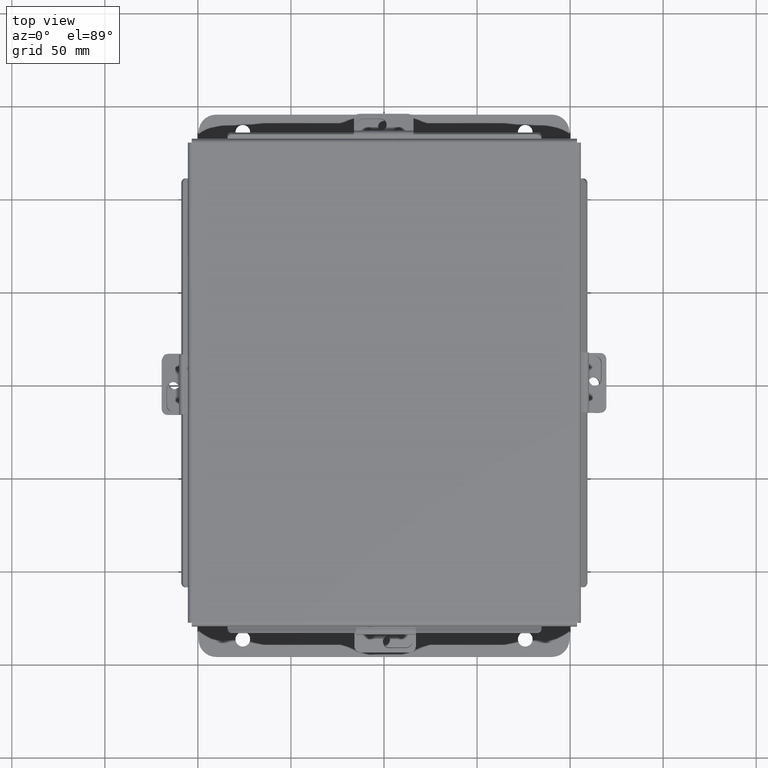
[diagram: clean part render]
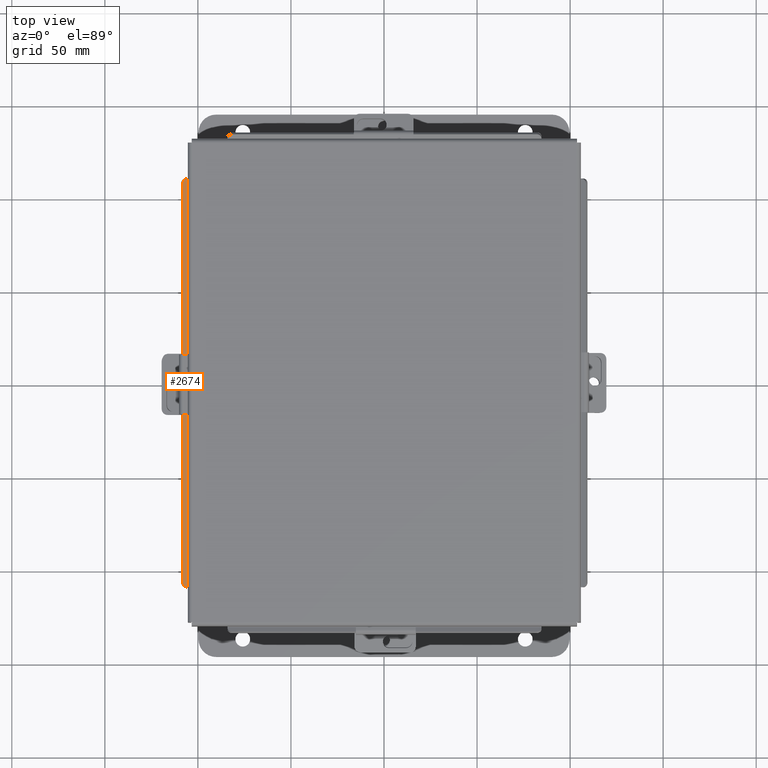
[diagram: same view with one face highlighted and labeled with its STEP entity id]
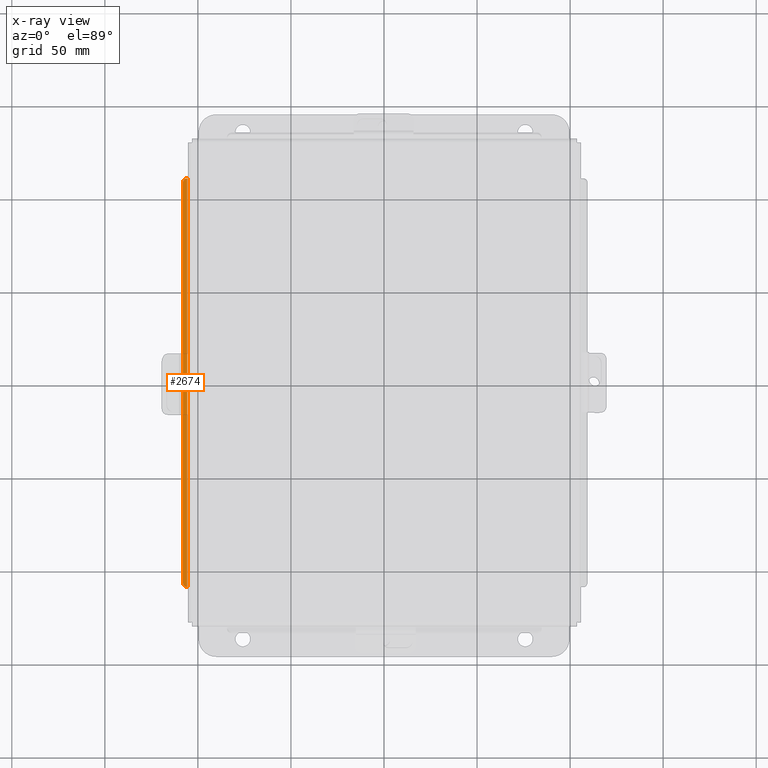
[diagram: x-ray of the same camera — body ghosted, the highlighted face saturated]
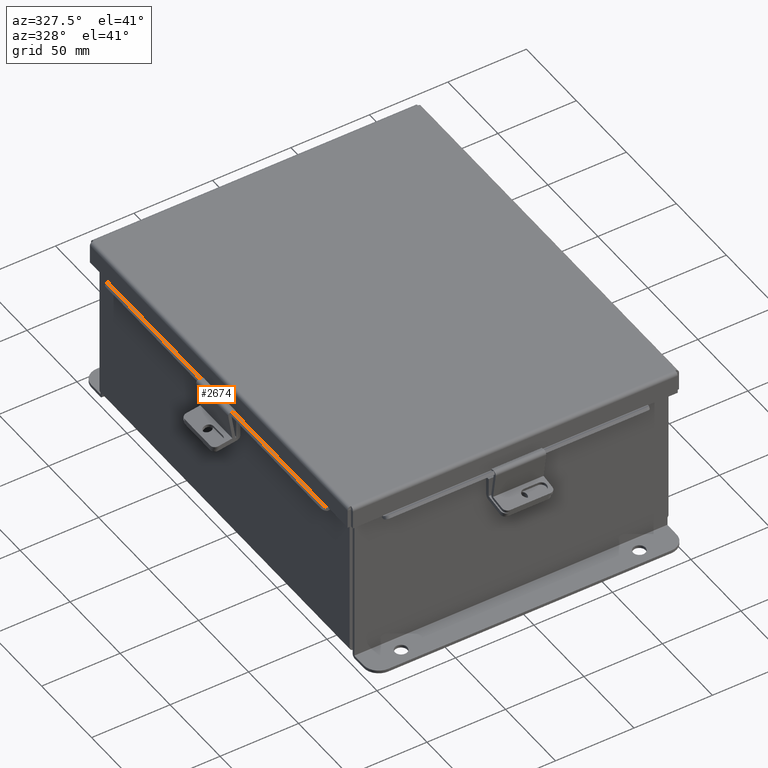
[diagram: same view with one face highlighted and labeled with its STEP entity id]
A machine part, top view. The second image highlights one B-rep face of the part: STEP entity #2674.
The next image is the same camera in x-ray: the body ghosted, the highlighted face saturated — about 0% of this face is hidden behind the body in this view.
A second angle (auxiliary view) of the same face is appended — the face is thin or edge-on in the first view.
In plain terms, the highlighted planar face has unit normal (0.5, -0, 0.866).
Its self-contained STEP definition (entity closure, byte-faithful):
#335 = VERTEX_POINT ( 'NONE', #8920 ) ;
#467 = CARTESIAN_POINT ( 'NONE',  ( 4.169750000000020900, -4.324478932188134700, 0.4795057713659433000 ) ) ;
#577 = CARTESIAN_POINT ( 'NONE',  ( 4.174103810567686400, -4.224478932188135100, 0.4769920976627015600 ) ) ;
#589 = VERTEX_POINT ( 'NONE', #7746 ) ;
#713 = DIRECTION ( 'NONE',  ( 0.8660254037844379300, -6.569732226293710900E-030, -0.5000000000000012200 ) ) ;
#749 = DIRECTION ( 'NONE',  ( -0.8660254037844380400, 6.557406274649634000E-030, 0.5000000000000010000 ) ) ;
#874 = DIRECTION ( 'NONE',  ( -0.5000000000000010000, -1.772471846418453900E-029, -0.8660254037844380400 ) ) ;
#898 = EDGE_CURVE ( 'NONE', #5756, #5953, #8036, .T. ) ;
#1357 = DIRECTION ( 'NONE',  ( -0.8660254037844380400, 0.0000000000000000000, 0.5000000000000010000 ) ) ;
#1383 = LINE ( 'NONE', #1472, #5066 ) ;
#1395 = FACE_OUTER_BOUND ( 'NONE', #7727, .T. ) ;
#1472 = CARTESIAN_POINT ( 'NONE',  ( 4.260706350946129800, -4.324478932188134700, 0.4269920976626969100 ) ) ;
#1550 = CIRCLE ( 'NONE', #3315, 0.1000000000000003800 ) ;
#1598 = EDGE_CURVE ( 'NONE', #4142, #589, #1550, .T. ) ;
#1653 = VECTOR ( 'NONE', #749, 39.37007874015748100 ) ;
#1966 = EDGE_CURVE ( 'NONE', #335, #589, #7482, .T. ) ;
#2026 = EDGE_CURVE ( 'NONE', #4142, #5756, #7067, .T. ) ;
#2513 = VECTOR ( 'NONE', #3388, 39.37007874015748100 ) ;
#2535 = CARTESIAN_POINT ( 'NONE',  ( 4.156250000000015100, 4.324478932188133800, 0.4873000000000082300 ) ) ;
#2674 = ADVANCED_FACE ( 'NONE', ( #1395 ), #9081, .T. ) ;
#2804 = CARTESIAN_POINT ( 'NONE',  ( 4.174103810567686400, -4.324478932188134700, 0.4769920976627015600 ) ) ;
#2942 = ORIENTED_EDGE ( 'NONE', *, *, #1966, .F. ) ;
#3077 = CARTESIAN_POINT ( 'NONE',  ( 4.174103810567686400, 4.224478932188133300, 0.4769920976627015600 ) ) ;
#3247 = ORIENTED_EDGE ( 'NONE', *, *, #7766, .T. ) ;
#3315 = AXIS2_PLACEMENT_3D ( 'NONE', #3077, #874, #8692 ) ;
#3388 = DIRECTION ( 'NONE',  ( 3.166671605124525800E-030, 1.000000000000000000, 1.853823127269377700E-029 ) ) ;
#3571 = CIRCLE ( 'NONE', #7911, 0.1000000000000003800 ) ;
#4101 = ORIENTED_EDGE ( 'NONE', *, *, #7832, .F. ) ;
#4142 = VERTEX_POINT ( 'NONE', #4738 ) ;
#4285 = ORIENTED_EDGE ( 'NONE', *, *, #1598, .T. ) ;
#4527 = ORIENTED_EDGE ( 'NONE', *, *, #898, .F. ) ;
#4738 = CARTESIAN_POINT ( 'NONE',  ( 4.174103810567686400, 4.324478932188133800, 0.4769920976627015600 ) ) ;
#5066 = VECTOR ( 'NONE', #713, 39.37007874015748900 ) ;
#5557 = ORIENTED_EDGE ( 'NONE', *, *, #2026, .F. ) ;
#5756 = VERTEX_POINT ( 'NONE', #7006 ) ;
#5771 = DIRECTION ( 'NONE',  ( -0.5000000000000010000, -1.772471846418453900E-029, -0.8660254037844380400 ) ) ;
#5953 = VERTEX_POINT ( 'NONE', #467 ) ;
#6874 = CARTESIAN_POINT ( 'NONE',  ( 4.169750000000020100, 4.324478932188133800, 0.4795057713659443600 ) ) ;
#6922 = DIRECTION ( 'NONE',  ( -0.8660254037844380400, 6.557406274649634000E-030, 0.5000000000000010000 ) ) ;
#7006 = CARTESIAN_POINT ( 'NONE',  ( 4.169750000000020900, 4.324478932188133800, 0.4795057713659433000 ) ) ;
#7067 = LINE ( 'NONE', #2535, #1653 ) ;
#7375 = CARTESIAN_POINT ( 'NONE',  ( 4.260706350946129800, 4.324478932188133800, 0.4269920976626969100 ) ) ;
#7438 = DIRECTION ( 'NONE',  ( -0.5000000000000010000, -1.772471846418453900E-029, -0.8660254037844380400 ) ) ;
#7482 = LINE ( 'NONE', #7375, #2513 ) ;
#7727 = EDGE_LOOP ( 'NONE', ( #5557, #4285, #2942, #3247, #4101, #4527 ) ) ;
#7746 = CARTESIAN_POINT ( 'NONE',  ( 4.260706350946129800, 4.224478932188133300, 0.4269920976626969100 ) ) ;
#7762 = VERTEX_POINT ( 'NONE', #2804 ) ;
#7766 = EDGE_CURVE ( 'NONE', #335, #7762, #3571, .T. ) ;
#7832 = EDGE_CURVE ( 'NONE', #5953, #7762, #1383, .T. ) ;
#7911 = AXIS2_PLACEMENT_3D ( 'NONE', #577, #5771, #1357 ) ;
#8036 = LINE ( 'NONE', #6874, #8730 ) ;
#8479 = CARTESIAN_POINT ( 'NONE',  ( 1.250069589632088800, 0.0000000000000000000, 2.165184042239548300 ) ) ;
#8575 = DIRECTION ( 'NONE',  ( 6.317172627042595900E-017, -1.000000000000000000, -1.263434525408771400E-016 ) ) ;
#8692 = DIRECTION ( 'NONE',  ( -0.8660254037844380400, 0.0000000000000000000, 0.5000000000000010000 ) ) ;
#8730 = VECTOR ( 'NONE', #8575, 39.37007874015748100 ) ;
#8920 = CARTESIAN_POINT ( 'NONE',  ( 4.260706350946129800, -4.224478932188135100, 0.4269920976626969100 ) ) ;
#9081 = PLANE ( 'NONE',  #9206 ) ;
#9206 = AXIS2_PLACEMENT_3D ( 'NONE', #8479, #7438, #6922 ) ;